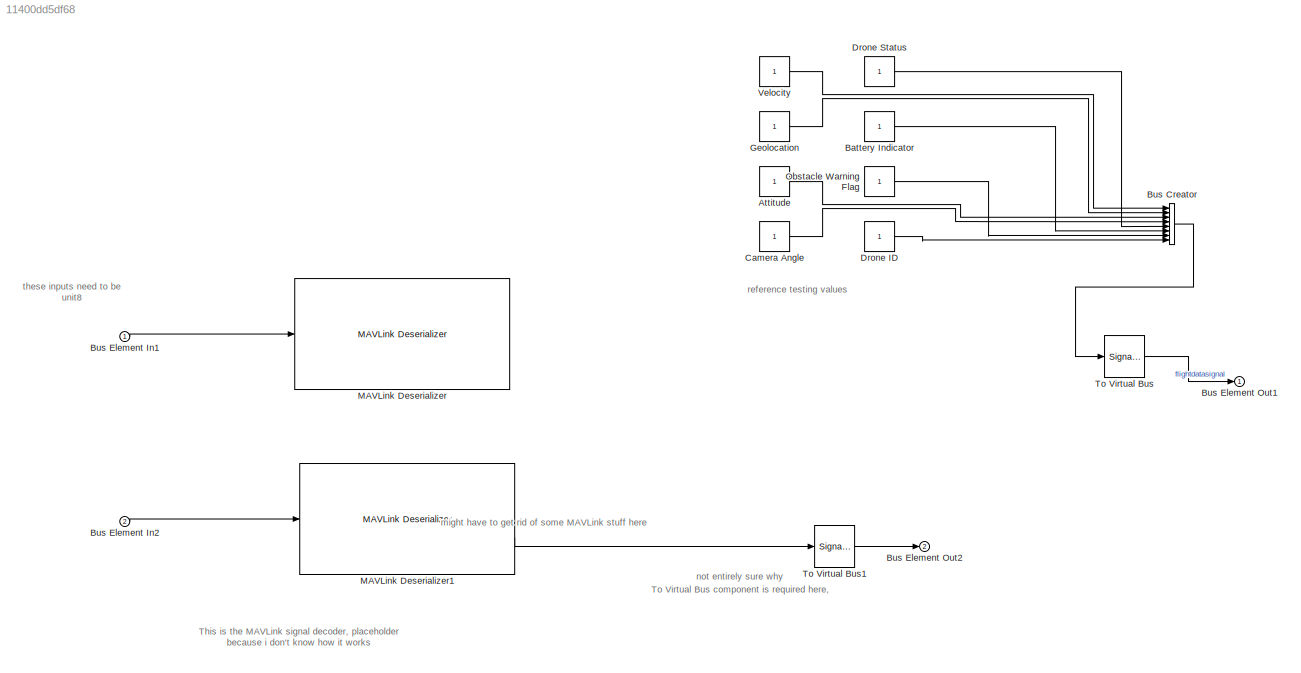
MODEL slx_11400dd5df68
KIND model
CONFIG AbsTol = auto
CONFIG EnableMultiTasking = off
CONFIG FixedStep = auto
CONFIG MaxStep = auto
CONFIG MinStep = auto
CONFIG RelTol = 1e-3
CONFIG SampleTimeConstraint = Unconstrained
CONFIG SolverName = VariableStepAuto
CONFIG StartTime = 0.0
CONFIG StopTime = 10.0
BLOCK [Constant] Attitude
BLOCK [Constant] Battery Indicator
BLOCK [BusCreator] Bus Creator
  DisplayOption = bar
  InheritFromInputs = on
  Inputs = 8
  Ports = [8, 1]
BLOCK [Inport] Bus Element In1
BLOCK [Inport] Bus Element In2
  Port = 2
BLOCK [Outport] Bus Element Out1
BLOCK [Outport] Bus Element Out2
  Port = 2
BLOCK [Constant] Camera Angle
BLOCK [Constant] Drone ID
BLOCK [Constant] Drone Status
BLOCK [Constant] Geolocation
BLOCK [Reference] MAVLink Deserializer  REF=uavmavlinklib/MAVLink Deserializer
  Commented = on
  Ports = [1, 2]
  SourceBlock = uavmavlinklib/MAVLink Deserializer
  SourceProductBaseCode = UV
  SourceType = MAVLink Deserializer
BLOCK [Reference] MAVLink Deserializer1  REF=uavmavlinklib/MAVLink Deserializer
  Ports = [1, 2]
  SourceBlock = uavmavlinklib/MAVLink Deserializer
  SourceProductBaseCode = UV
  SourceType = MAVLink Deserializer
BLOCK [Constant] Obstacle Warning Flag
BLOCK [SignalConversion] To Virtual Bus
  ConversionOutput = Virtual bus
  OverrideOpt = off
BLOCK [SignalConversion] To Virtual Bus1
  ConversionOutput = Virtual bus
  OverrideOpt = off
BLOCK [Constant] Velocity
ANNOTATION (root): This is the MAVLink signal decoder, placeholder because i don't know how it works
ANNOTATION (root): To Virtual Bus component is required here, not entirely sure why
ANNOTATION (root): might have to get rid of some MAVLink stuff here
ANNOTATION (root): reference testing values
ANNOTATION (root): these inputs need to be unit8
LINE Attitude:1 -> Bus Creator:3
LINE Battery Indicator:1 -> Bus Creator:6
LINE Bus Creator:1 -> To Virtual Bus:1
LINE Bus Element In1:1 -> MAVLink Deserializer:1
LINE Bus Element In2:1 -> MAVLink Deserializer1:1
LINE Camera Angle:1 -> Bus Creator:4
LINE Drone ID:1 -> Bus Creator:8
LINE Drone Status:1 -> Bus Creator:5
LINE Geolocation:1 -> Bus Creator:2
LINE MAVLink Deserializer1:2 -> To Virtual Bus1:1
LINE Obstacle Warning Flag:1 -> Bus Creator:7
LINE To Virtual Bus1:1 -> Bus Element Out2:1
LINE To Virtual Bus:1 -> Bus Element Out1:1
LINE Velocity:1 -> Bus Creator:1
